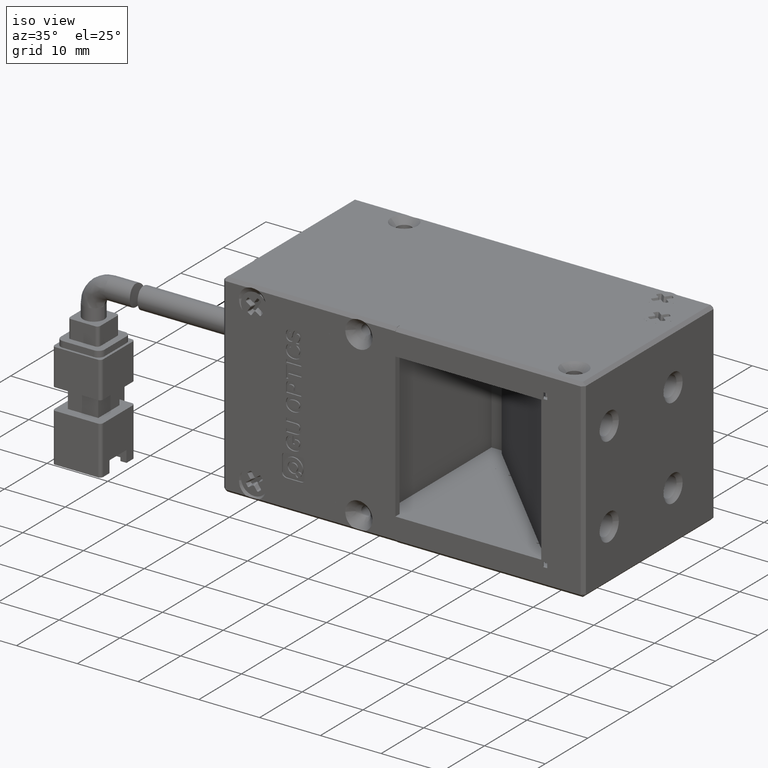
[diagram: clean part render]
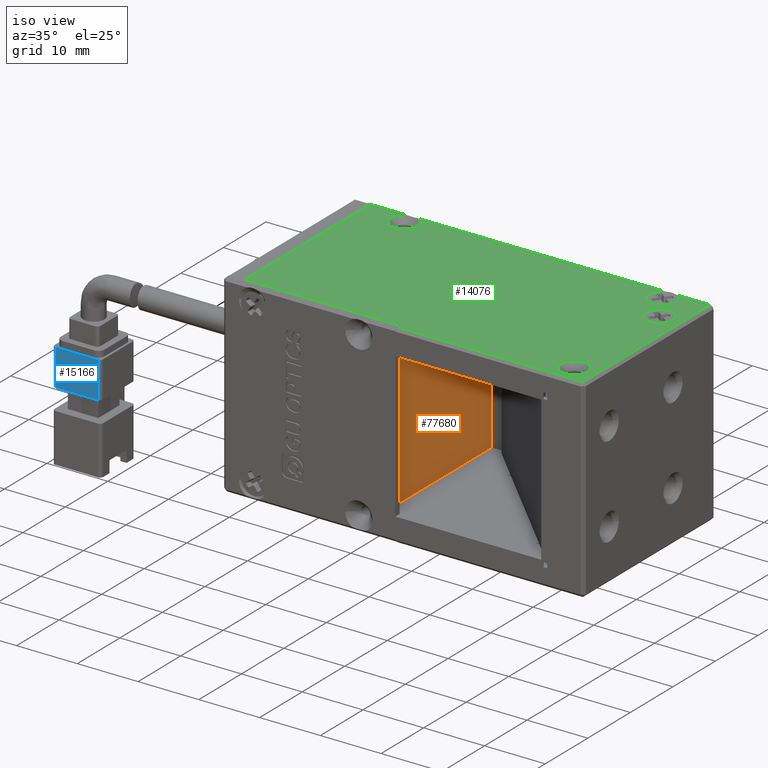
[diagram: same view with three faces highlighted in distinct colors, each labeled with its STEP entity id]
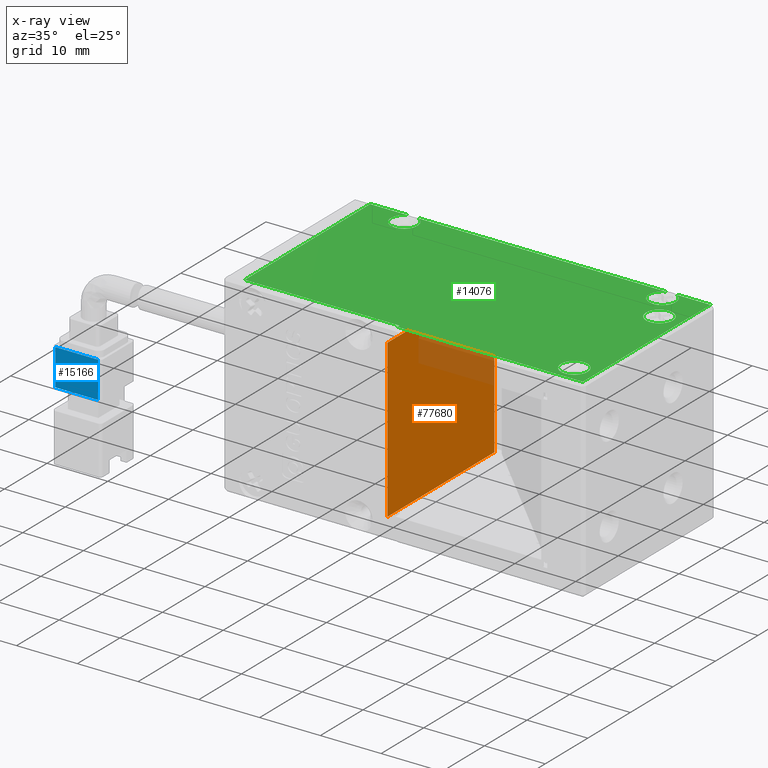
[diagram: x-ray of the same camera — body ghosted, the three highlighted faces saturated]
A machine part, iso view with three faces highlighted in distinct colors.
The next image is the same camera in x-ray (body ghosted, the three faces saturated) — at least one of them is partly hidden behind the body in this view.
Their STEP definitions:

[orange] entity #77680 — the highlighted planar face has unit normal (-1, 0, 0).
#1120 = CARTESIAN_POINT ( 'NONE',  ( -34.00895663278029700, -30.00000000000002500, 21.76069164156516000 ) ) ;
#1737 = CARTESIAN_POINT ( 'NONE',  ( -34.00895663278029000, -4.800000000000015800, 47.66069164156515100 ) ) ;
#3142 = ORIENTED_EDGE ( 'NONE', *, *, #68871, .T. ) ;
#3456 = EDGE_LOOP ( 'NONE', ( #3142, #79092, #76702, #73758 ) ) ;
#4663 = VERTEX_POINT ( 'NONE', #1737 ) ;
#7630 = LINE ( 'NONE', #34881, #54429 ) ;
#7761 = CARTESIAN_POINT ( 'NONE',  ( -34.00895663278029000, -4.800000000000015800, 47.66069164156515100 ) ) ;
#7999 = DIRECTION ( 'NONE',  ( -1.000000000000000000, 1.110223024625157300E-016, 2.775557561562891400E-016 ) ) ;
#15541 = CARTESIAN_POINT ( 'NONE',  ( -34.00895663278029000, -30.00000000000001800, 47.66069164156515800 ) ) ;
#16739 = CARTESIAN_POINT ( 'NONE',  ( -34.00895663278029000, -4.800000000000022900, 21.76069164156515300 ) ) ;
#17558 = LINE ( 'NONE', #7761, #64344 ) ;
#21114 = VECTOR ( 'NONE', #53804, 1000.000000000000000 ) ;
#23989 = DIRECTION ( 'NONE',  ( -1.110223024625156500E-016, -1.000000000000000000, 2.949861006315093800E-016 ) ) ;
#24287 = EDGE_CURVE ( 'NONE', #46035, #28863, #7630, .T. ) ;
#26758 = EDGE_CURVE ( 'NONE', #56197, #4663, #17558, .T. ) ;
#28706 = DIRECTION ( 'NONE',  ( -2.775557561562891800E-016, -2.949861006315093300E-016, -1.000000000000000000 ) ) ;
#28863 = VERTEX_POINT ( 'NONE', #1120 ) ;
#34881 = CARTESIAN_POINT ( 'NONE',  ( -34.00895663278029000, -30.00000000000001800, 47.66069164156515800 ) ) ;
#35423 = CARTESIAN_POINT ( 'NONE',  ( -34.00895663278029000, -4.800000000000022900, 21.76069164156515300 ) ) ;
#39285 = LINE ( 'NONE', #35423, #21114 ) ;
#44553 = CARTESIAN_POINT ( 'NONE',  ( -34.00895663278029000, -4.800000000000022900, 21.76069164156515300 ) ) ;
#46035 = VERTEX_POINT ( 'NONE', #15541 ) ;
#48077 = LINE ( 'NONE', #66641, #64271 ) ;
#50693 = DIRECTION ( 'NONE',  ( -1.110223024625156500E-016, -1.000000000000000000, 2.949861006315093800E-016 ) ) ;
#53804 = DIRECTION ( 'NONE',  ( 1.110223024625156500E-016, 1.000000000000000000, -2.949861006315093800E-016 ) ) ;
#54429 = VECTOR ( 'NONE', #28706, 1000.000000000000000 ) ;
#56197 = VERTEX_POINT ( 'NONE', #16739 ) ;
#56575 = PLANE ( 'NONE',  #70562 ) ;
#64271 = VECTOR ( 'NONE', #23989, 1000.000000000000000 ) ;
#64344 = VECTOR ( 'NONE', #74708, 1000.000000000000000 ) ;
#66641 = CARTESIAN_POINT ( 'NONE',  ( -34.00895663278029000, -4.800000000000015800, 47.66069164156515100 ) ) ;
#68871 = EDGE_CURVE ( 'NONE', #4663, #46035, #48077, .T. ) ;
#70187 = FACE_OUTER_BOUND ( 'NONE', #3456, .T. ) ;
#70562 = AXIS2_PLACEMENT_3D ( 'NONE', #44553, #7999, #50693 ) ;
#73360 = EDGE_CURVE ( 'NONE', #28863, #56197, #39285, .T. ) ;
#73758 = ORIENTED_EDGE ( 'NONE', *, *, #26758, .T. ) ;
#74708 = DIRECTION ( 'NONE',  ( 2.775557561562891800E-016, 2.949861006315093300E-016, 1.000000000000000000 ) ) ;
#76702 = ORIENTED_EDGE ( 'NONE', *, *, #73360, .T. ) ;
#77680 = ADVANCED_FACE ( 'NONE', ( #70187 ), #56575, .F. ) ;
#79092 = ORIENTED_EDGE ( 'NONE', *, *, #24287, .T. ) ;

[blue] entity #15166 — the highlighted planar face has unit normal (-0, 1, 0).
#1333 = DIRECTION ( 'NONE',  ( -1.000000000000000000, 0.0000000000000000000, -1.665334536937736000E-016 ) ) ;
#1428 = ORIENTED_EDGE ( 'NONE', *, *, #57438, .F. ) ;
#3414 = VECTOR ( 'NONE', #1333, 1000.000000000000000 ) ;
#7309 = PLANE ( 'NONE',  #46471 ) ;
#7431 = EDGE_LOOP ( 'NONE', ( #73910, #1428, #24988, #14930 ) ) ;
#8324 = CARTESIAN_POINT ( 'NONE',  ( -86.96895663278033300, -32.35000000000006500, 33.76069164156513100 ) ) ;
#9825 = VECTOR ( 'NONE', #60959, 1000.000000000000000 ) ;
#13906 = DIRECTION ( 'NONE',  ( 1.000000000000000000, 1.726999287208060200E-016, -0.0000000000000000000 ) ) ;
#14930 = ORIENTED_EDGE ( 'NONE', *, *, #20176, .F. ) ;
#15166 = ADVANCED_FACE ( 'NONE', ( #22581 ), #7309, .F. ) ;
#19688 = LINE ( 'NONE', #56095, #3414 ) ;
#19848 = DIRECTION ( 'NONE',  ( -1.726999287208060200E-016, 1.000000000000000000, 1.089862896423737900E-016 ) ) ;
#20035 = CARTESIAN_POINT ( 'NONE',  ( -86.96895663278031900, -32.35000000000006500, 33.76069164156513100 ) ) ;
#20176 = EDGE_CURVE ( 'NONE', #30877, #26658, #19688, .T. ) ;
#20741 = CARTESIAN_POINT ( 'NONE',  ( -79.96895663278030500, -32.35000000000006500, 33.76069164156516700 ) ) ;
#20857 = EDGE_CURVE ( 'NONE', #26658, #34062, #73802, .T. ) ;
#22581 = FACE_OUTER_BOUND ( 'NONE', #7431, .T. ) ;
#24988 = ORIENTED_EDGE ( 'NONE', *, *, #20857, .F. ) ;
#26076 = LINE ( 'NONE', #79100, #9825 ) ;
#26658 = VERTEX_POINT ( 'NONE', #61112 ) ;
#26877 = DIRECTION ( 'NONE',  ( 1.882192445278307300E-032, -1.089862896423737900E-016, 1.000000000000000000 ) ) ;
#27049 = VECTOR ( 'NONE', #26877, 1000.000000000000000 ) ;
#27134 = CARTESIAN_POINT ( 'NONE',  ( -86.96895663278034800, -32.35000000000006500, 33.76069164156513100 ) ) ;
#30877 = VERTEX_POINT ( 'NONE', #46477 ) ;
#34062 = VERTEX_POINT ( 'NONE', #8324 ) ;
#38588 = VERTEX_POINT ( 'NONE', #20741 ) ;
#39868 = LINE ( 'NONE', #20035, #54198 ) ;
#46471 = AXIS2_PLACEMENT_3D ( 'NONE', #56420, #19848, #62515 ) ;
#46477 = CARTESIAN_POINT ( 'NONE',  ( -79.96895663278030500, -32.35000000000006500, 27.76069164156522400 ) ) ;
#54198 = VECTOR ( 'NONE', #13906, 1000.000000000000000 ) ;
#56095 = CARTESIAN_POINT ( 'NONE',  ( -79.96895663278030500, -32.35000000000005800, 27.76069164156523100 ) ) ;
#56420 = CARTESIAN_POINT ( 'NONE',  ( -86.96895663278031900, -32.35000000000006500, 33.76069164156513100 ) ) ;
#57438 = EDGE_CURVE ( 'NONE', #34062, #38588, #39868, .T. ) ;
#59327 = EDGE_CURVE ( 'NONE', #38588, #30877, #26076, .T. ) ;
#60959 = DIRECTION ( 'NONE',  ( -1.882192445278307300E-032, 1.089862896423737900E-016, -1.000000000000000000 ) ) ;
#61112 = CARTESIAN_POINT ( 'NONE',  ( -86.96895663278033300, -32.35000000000006500, 27.76069164156519200 ) ) ;
#62515 = DIRECTION ( 'NONE',  ( -1.000000000000000000, -1.726999287208060200E-016, 0.0000000000000000000 ) ) ;
#73802 = LINE ( 'NONE', #27134, #27049 ) ;
#73910 = ORIENTED_EDGE ( 'NONE', *, *, #59327, .F. ) ;
#79100 = CARTESIAN_POINT ( 'NONE',  ( -79.96895663278030500, -32.35000000000006500, 33.76069164156513100 ) ) ;

[green] entity #14076 — the highlighted planar face has unit normal (-0, 0, -1).
#54 = EDGE_CURVE ( 'NONE', #50950, #23315, #47423, .T. ) ;
#353 = EDGE_LOOP ( 'NONE', ( #77712, #2447, #67531, #58613, #32981, #7102, #37319, #36352, #35607, #43229, #10755, #6009, #4601, #34766 ) ) ;
#407 = DIRECTION ( 'NONE',  ( 2.775557561562891400E-016, -5.551115123125782700E-017, 1.000000000000000000 ) ) ;
#1027 = DIRECTION ( 'NONE',  ( 2.775557561562891400E-016, -5.551115123125782700E-017, 1.000000000000000000 ) ) ;
#1202 = EDGE_CURVE ( 'NONE', #78633, #9143, #58509, .T. ) ;
#2076 = DIRECTION ( 'NONE',  ( -2.775557561562891400E-016, 5.551115123125782700E-017, -1.000000000000000000 ) ) ;
#2391 = CARTESIAN_POINT ( 'NONE',  ( -57.46895663278029100, -0.5000000000000282000, 50.76069164156516000 ) ) ;
#2447 = ORIENTED_EDGE ( 'NONE', *, *, #7321, .F. ) ;
#2720 = CARTESIAN_POINT ( 'NONE',  ( -31.96895663278029400, -30.00000000000002800, 50.76069164156515300 ) ) ;
#2868 = DIRECTION ( 'NONE',  ( -1.000000000000000000, 0.0000000000000000000, 0.0000000000000000000 ) ) ;
#3719 = CARTESIAN_POINT ( 'NONE',  ( -50.46895663278028400, -2.500000000000028400, 50.76069164153921100 ) ) ;
#4601 = ORIENTED_EDGE ( 'NONE', *, *, #16499, .F. ) ;
#4869 = FACE_BOUND ( 'NONE', #32844, .T. ) ;
#4978 = VECTOR ( 'NONE', #60167, 1000.000000000000000 ) ;
#5416 = AXIS2_PLACEMENT_3D ( 'NONE', #38721, #2076, #44831 ) ;
#6009 = ORIENTED_EDGE ( 'NONE', *, *, #74111, .F. ) ;
#6032 = CARTESIAN_POINT ( 'NONE',  ( -7.168956632739615000, -27.50000000000003200, 50.76069164154327500 ) ) ;
#6607 = CARTESIAN_POINT ( 'NONE',  ( -31.96895663278029400, -30.00000000000002800, 50.76069164156515300 ) ) ;
#7102 = ORIENTED_EDGE ( 'NONE', *, *, #44270, .F. ) ;
#7321 = EDGE_CURVE ( 'NONE', #42693, #78633, #63003, .T. ) ;
#7752 = ORIENTED_EDGE ( 'NONE', *, *, #28367, .F. ) ;
#8474 = EDGE_CURVE ( 'NONE', #42009, #60495, #68662, .T. ) ;
#8617 = AXIS2_PLACEMENT_3D ( 'NONE', #21113, #63788, #27277 ) ;
#9143 = VERTEX_POINT ( 'NONE', #77456 ) ;
#9345 = VECTOR ( 'NONE', #57721, 1000.000000000000000 ) ;
#9913 = DIRECTION ( 'NONE',  ( -1.000000000000000000, 0.0000000000000000000, 0.0000000000000000000 ) ) ;
#9981 = ORIENTED_EDGE ( 'NONE', *, *, #63978, .F. ) ;
#10755 = ORIENTED_EDGE ( 'NONE', *, *, #24855, .F. ) ;
#12075 = VERTEX_POINT ( 'NONE', #6032 ) ;
#12440 = CARTESIAN_POINT ( 'NONE',  ( -49.55244149380858000, -0.5000000000034798800, 50.76069164156861300 ) ) ;
#12612 = CARTESIAN_POINT ( 'NONE',  ( -10.16895663279646000, -2.500000000000028400, 50.76069164155737200 ) ) ;
#13275 = AXIS2_PLACEMENT_3D ( 'NONE', #37669, #1027, #43769 ) ;
#13683 = CARTESIAN_POINT ( 'NONE',  ( -4.968956632780269400, -27.50000000000003200, 50.76069164154327500 ) ) ;
#14076 = ADVANCED_FACE ( 'NONE', ( #67870, #4869, #19202 ), #50702, .F. ) ;
#14969 = VERTEX_POINT ( 'NONE', #66508 ) ;
#16499 = EDGE_CURVE ( 'NONE', #34406, #48886, #71825, .T. ) ;
#18390 = DIRECTION ( 'NONE',  ( 2.775557561562891400E-016, -5.551115123125782700E-017, 1.000000000000000000 ) ) ;
#19202 = FACE_OUTER_BOUND ( 'NONE', #353, .T. ) ;
#19206 = DIRECTION ( 'NONE',  ( 1.000000000000000000, -1.078520768856852100E-031, -2.775557561562891400E-016 ) ) ;
#19235 = DIRECTION ( 'NONE',  ( 1.232595164407830900E-031, 1.000000000000000000, 5.551115123125782700E-017 ) ) ;
#19820 = DIRECTION ( 'NONE',  ( -1.000000000000000000, 0.0000000000000000000, 0.0000000000000000000 ) ) ;
#20024 = LINE ( 'NONE', #74453, #36314 ) ;
#20799 = LINE ( 'NONE', #61622, #35172 ) ;
#21113 = CARTESIAN_POINT ( 'NONE',  ( -7.968956632780272100, -2.500000000000028400, 50.76069164155737200 ) ) ;
#22368 = CARTESIAN_POINT ( 'NONE',  ( -7.052441493757361200, -0.4999999999944050900, 50.76069164155952500 ) ) ;
#22917 = CARTESIAN_POINT ( 'NONE',  ( -4.968956632780269400, -7.500000000000027500, 50.76069164154327500 ) ) ;
#23315 = VERTEX_POINT ( 'NONE', #43290 ) ;
#23395 = VERTEX_POINT ( 'NONE', #68034 ) ;
#24855 = EDGE_CURVE ( 'NONE', #14969, #60716, #29816, .T. ) ;
#26129 = CARTESIAN_POINT ( 'NONE',  ( -5.768956632764083100, -2.500000000000028900, 50.76069164155737200 ) ) ;
#26751 = AXIS2_PLACEMENT_3D ( 'NONE', #31759, #74412, #37930 ) ;
#26957 = VECTOR ( 'NONE', #69626, 1000.000000000000000 ) ;
#27083 = CARTESIAN_POINT ( 'NONE',  ( -51.38547177171980000, -0.5000000000032565100, 50.76069164155541100 ) ) ;
#27226 = VERTEX_POINT ( 'NONE', #26129 ) ;
#27277 = DIRECTION ( 'NONE',  ( -1.000000000000000000, 0.0000000000000000000, 0.0000000000000000000 ) ) ;
#27906 = VECTOR ( 'NONE', #41166, 1000.000000000000000 ) ;
#27957 = CIRCLE ( 'NONE', #8617, 2.200000000016189000 ) ;
#28367 = EDGE_CURVE ( 'NONE', #72816, #12075, #52301, .T. ) ;
#29052 = DIRECTION ( 'NONE',  ( -1.000000000000000000, 0.0000000000000000000, 0.0000000000000000000 ) ) ;
#29466 = DIRECTION ( 'NONE',  ( 2.775557561562891400E-016, -5.551115123125782700E-017, 1.000000000000000000 ) ) ;
#29816 = LINE ( 'NONE', #71539, #27906 ) ;
#31759 = CARTESIAN_POINT ( 'NONE',  ( -50.46895663278028400, -2.500000000000028400, 50.76069164153921100 ) ) ;
#32437 = EDGE_CURVE ( 'NONE', #23395, #42009, #61939, .T. ) ;
#32844 = EDGE_LOOP ( 'NONE', ( #60632, #7752 ) ) ;
#32981 = ORIENTED_EDGE ( 'NONE', *, *, #47535, .F. ) ;
#34406 = VERTEX_POINT ( 'NONE', #6607 ) ;
#34766 = ORIENTED_EDGE ( 'NONE', *, *, #66745, .T. ) ;
#35172 = VECTOR ( 'NONE', #19206, 1000.000000000000000 ) ;
#35607 = ORIENTED_EDGE ( 'NONE', *, *, #32437, .F. ) ;
#36293 = AXIS2_PLACEMENT_3D ( 'NONE', #54993, #18390, #61078 ) ;
#36314 = VECTOR ( 'NONE', #19235, 1000.000000000000000 ) ;
#36352 = ORIENTED_EDGE ( 'NONE', *, *, #8474, .F. ) ;
#37026 = CARTESIAN_POINT ( 'NONE',  ( -4.968956632780269400, -27.50000000000003200, 50.76069164154327500 ) ) ;
#37319 = ORIENTED_EDGE ( 'NONE', *, *, #61252, .F. ) ;
#37669 = CARTESIAN_POINT ( 'NONE',  ( -50.46895663278028400, -2.500000000000028400, 50.76069164153921100 ) ) ;
#37930 = DIRECTION ( 'NONE',  ( -1.000000000000000000, 0.0000000000000000000, 0.0000000000000000000 ) ) ;
#38334 = VERTEX_POINT ( 'NONE', #72533 ) ;
#38721 = CARTESIAN_POINT ( 'NONE',  ( -57.46895663278029100, -2.797241605012601400E-014, 50.76069164156516000 ) ) ;
#39475 = DIRECTION ( 'NONE',  ( 2.775557561562891400E-016, -5.551115123125782700E-017, 1.000000000000000000 ) ) ;
#40477 = EDGE_CURVE ( 'NONE', #60716, #23395, #74523, .T. ) ;
#41166 = DIRECTION ( 'NONE',  ( 1.000000000000000000, -1.078520768856852100E-031, -2.775557561562891400E-016 ) ) ;
#41209 = AXIS2_PLACEMENT_3D ( 'NONE', #37026, #407, #43145 ) ;
#41794 = CARTESIAN_POINT ( 'NONE',  ( -57.46895663278029100, -30.00000000000002800, 50.76069164156516000 ) ) ;
#41898 = CARTESIAN_POINT ( 'NONE',  ( -2.768956632820923900, -27.50000000000003200, 50.76069164154327500 ) ) ;
#42009 = VERTEX_POINT ( 'NONE', #54983 ) ;
#42307 = VECTOR ( 'NONE', #53344, 1000.000000000000000 ) ;
#42693 = VERTEX_POINT ( 'NONE', #72379 ) ;
#42892 = EDGE_CURVE ( 'NONE', #12075, #72816, #50252, .T. ) ;
#43145 = DIRECTION ( 'NONE',  ( -1.000000000000000000, 0.0000000000000000000, 0.0000000000000000000 ) ) ;
#43197 = LINE ( 'NONE', #2391, #26957 ) ;
#43229 = ORIENTED_EDGE ( 'NONE', *, *, #40477, .F. ) ;
#43290 = CARTESIAN_POINT ( 'NONE',  ( -2.768956632820923900, -7.500000000000027500, 50.76069164154327500 ) ) ;
#43769 = DIRECTION ( 'NONE',  ( -1.000000000000000000, 0.0000000000000000000, 0.0000000000000000000 ) ) ;
#44082 = CARTESIAN_POINT ( 'NONE',  ( -57.46895663278029100, -30.00000000000002800, 50.76069164156516000 ) ) ;
#44270 = EDGE_CURVE ( 'NONE', #38334, #61093, #58514, .T. ) ;
#44831 = DIRECTION ( 'NONE',  ( 1.000000000000000000, -1.078520768856852100E-031, -2.775557561562891400E-016 ) ) ;
#46491 = DIRECTION ( 'NONE',  ( 2.775557561562891400E-016, -5.551115123125782700E-017, 1.000000000000000000 ) ) ;
#47423 = CIRCLE ( 'NONE', #75454, 2.199999999959345600 ) ;
#47535 = EDGE_CURVE ( 'NONE', #61093, #27226, #27957, .T. ) ;
#48117 = CARTESIAN_POINT ( 'NONE',  ( -1.468956632780252100, -2.797241605012601400E-014, 50.76069164156514500 ) ) ;
#48886 = VERTEX_POINT ( 'NONE', #44082 ) ;
#49758 = CARTESIAN_POINT ( 'NONE',  ( -1.468956632780266100, -30.50000000000002800, 50.76069164156514500 ) ) ;
#49885 = AXIS2_PLACEMENT_3D ( 'NONE', #3719, #46491, #9913 ) ;
#50252 = CIRCLE ( 'NONE', #62230, 2.199999999959345600 ) ;
#50379 = EDGE_CURVE ( 'NONE', #27226, #77858, #52903, .T. ) ;
#50702 = PLANE ( 'NONE',  #5416 ) ;
#50950 = VERTEX_POINT ( 'NONE', #62609 ) ;
#50952 = CIRCLE ( 'NONE', #67908, 2.199999999959345600 ) ;
#52301 = CIRCLE ( 'NONE', #41209, 2.199999999959345600 ) ;
#52810 = ORIENTED_EDGE ( 'NONE', *, *, #54, .F. ) ;
#52903 = CIRCLE ( 'NONE', #36293, 2.200000000016189000 ) ;
#53344 = DIRECTION ( 'NONE',  ( -1.000000000000000000, 1.078520768856852100E-031, 2.775557561562891400E-016 ) ) ;
#54983 = CARTESIAN_POINT ( 'NONE',  ( -48.26895663282093800, -2.500000000000028900, 50.76069164153921100 ) ) ;
#54993 = CARTESIAN_POINT ( 'NONE',  ( -7.968956632780272100, -2.500000000000028400, 50.76069164155737200 ) ) ;
#56388 = DIRECTION ( 'NONE',  ( 2.775557561562891400E-016, -5.551115123125782700E-017, 1.000000000000000000 ) ) ;
#57721 = DIRECTION ( 'NONE',  ( -1.232595164407830900E-031, -1.000000000000000000, -5.551115123125782700E-017 ) ) ;
#58509 = LINE ( 'NONE', #65317, #42307 ) ;
#58514 = CIRCLE ( 'NONE', #67453, 2.200000000016189000 ) ;
#58613 = ORIENTED_EDGE ( 'NONE', *, *, #50379, .F. ) ;
#59896 = EDGE_LOOP ( 'NONE', ( #52810, #9981 ) ) ;
#60167 = DIRECTION ( 'NONE',  ( -1.000000000000000000, 1.078520768856852100E-031, 2.775557561562891400E-016 ) ) ;
#60495 = VERTEX_POINT ( 'NONE', #12440 ) ;
#60632 = ORIENTED_EDGE ( 'NONE', *, *, #42892, .F. ) ;
#60716 = VERTEX_POINT ( 'NONE', #27083 ) ;
#61078 = DIRECTION ( 'NONE',  ( -1.000000000000000000, 0.0000000000000000000, 0.0000000000000000000 ) ) ;
#61093 = VERTEX_POINT ( 'NONE', #12612 ) ;
#61252 = EDGE_CURVE ( 'NONE', #60495, #38334, #43197, .T. ) ;
#61622 = CARTESIAN_POINT ( 'NONE',  ( -57.46895663278029100, -0.5000000000000282000, 50.76069164156516000 ) ) ;
#61939 = CIRCLE ( 'NONE', #49885, 2.199999999959345600 ) ;
#62230 = AXIS2_PLACEMENT_3D ( 'NONE', #13683, #56388, #19820 ) ;
#62609 = CARTESIAN_POINT ( 'NONE',  ( -7.168956632739615000, -7.500000000000027500, 50.76069164154327500 ) ) ;
#63003 = LINE ( 'NONE', #48117, #77286 ) ;
#63788 = DIRECTION ( 'NONE',  ( 2.775557561562891400E-016, -5.551115123125782700E-017, 1.000000000000000000 ) ) ;
#63978 = EDGE_CURVE ( 'NONE', #23315, #50950, #50952, .T. ) ;
#65317 = CARTESIAN_POINT ( 'NONE',  ( -57.46895663278029100, -30.50000000000002800, 50.76069164156516000 ) ) ;
#65583 = DIRECTION ( 'NONE',  ( 2.775557561562891400E-016, -5.551115123125782700E-017, 1.000000000000000000 ) ) ;
#65980 = CARTESIAN_POINT ( 'NONE',  ( -7.968956632780272100, -2.500000000000028400, 50.76069164155737200 ) ) ;
#66482 = DIRECTION ( 'NONE',  ( -1.232595164407830900E-031, -1.000000000000000000, -5.551115123125782700E-017 ) ) ;
#66508 = CARTESIAN_POINT ( 'NONE',  ( -57.46895663278029100, -0.5000000000000325300, 50.76069164156516000 ) ) ;
#66745 = EDGE_CURVE ( 'NONE', #34406, #9143, #72304, .T. ) ;
#67453 = AXIS2_PLACEMENT_3D ( 'NONE', #65980, #29466, #72119 ) ;
#67531 = ORIENTED_EDGE ( 'NONE', *, *, #71677, .F. ) ;
#67870 = FACE_BOUND ( 'NONE', #59896, .T. ) ;
#67908 = AXIS2_PLACEMENT_3D ( 'NONE', #22917, #65583, #29052 ) ;
#68034 = CARTESIAN_POINT ( 'NONE',  ( -52.66895663273962900, -2.500000000000028400, 50.76069164153921100 ) ) ;
#68662 = CIRCLE ( 'NONE', #13275, 2.199999999959345600 ) ;
#69626 = DIRECTION ( 'NONE',  ( 1.000000000000000000, -1.078520768856852100E-031, -2.775557561562891400E-016 ) ) ;
#71539 = CARTESIAN_POINT ( 'NONE',  ( -57.46895663278029100, -0.5000000000000334200, 50.76069164156516000 ) ) ;
#71677 = EDGE_CURVE ( 'NONE', #77858, #42693, #20799, .T. ) ;
#71825 = LINE ( 'NONE', #41794, #4978 ) ;
#72119 = DIRECTION ( 'NONE',  ( -1.000000000000000000, 0.0000000000000000000, 0.0000000000000000000 ) ) ;
#72304 = LINE ( 'NONE', #2720, #9345 ) ;
#72379 = CARTESIAN_POINT ( 'NONE',  ( -1.468956632780252100, -0.5000000000000282000, 50.76069164156514500 ) ) ;
#72533 = CARTESIAN_POINT ( 'NONE',  ( -8.885471771793524100, -0.4999999999943326400, 50.76069164155556000 ) ) ;
#72816 = VERTEX_POINT ( 'NONE', #41898 ) ;
#74111 = EDGE_CURVE ( 'NONE', #48886, #14969, #20024, .T. ) ;
#74412 = DIRECTION ( 'NONE',  ( 2.775557561562891400E-016, -5.551115123125782700E-017, 1.000000000000000000 ) ) ;
#74453 = CARTESIAN_POINT ( 'NONE',  ( -57.46895663278029100, -2.797241605012601400E-014, 50.76069164156516000 ) ) ;
#74523 = CIRCLE ( 'NONE', #26751, 2.199999999959345600 ) ;
#75454 = AXIS2_PLACEMENT_3D ( 'NONE', #75980, #39475, #2868 ) ;
#75980 = CARTESIAN_POINT ( 'NONE',  ( -4.968956632780269400, -7.500000000000027500, 50.76069164154327500 ) ) ;
#77286 = VECTOR ( 'NONE', #66482, 1000.000000000000000 ) ;
#77456 = CARTESIAN_POINT ( 'NONE',  ( -31.96895663278029400, -30.50000000000002800, 50.76069164156515300 ) ) ;
#77712 = ORIENTED_EDGE ( 'NONE', *, *, #1202, .F. ) ;
#77858 = VERTEX_POINT ( 'NONE', #22368 ) ;
#78633 = VERTEX_POINT ( 'NONE', #49758 ) ;